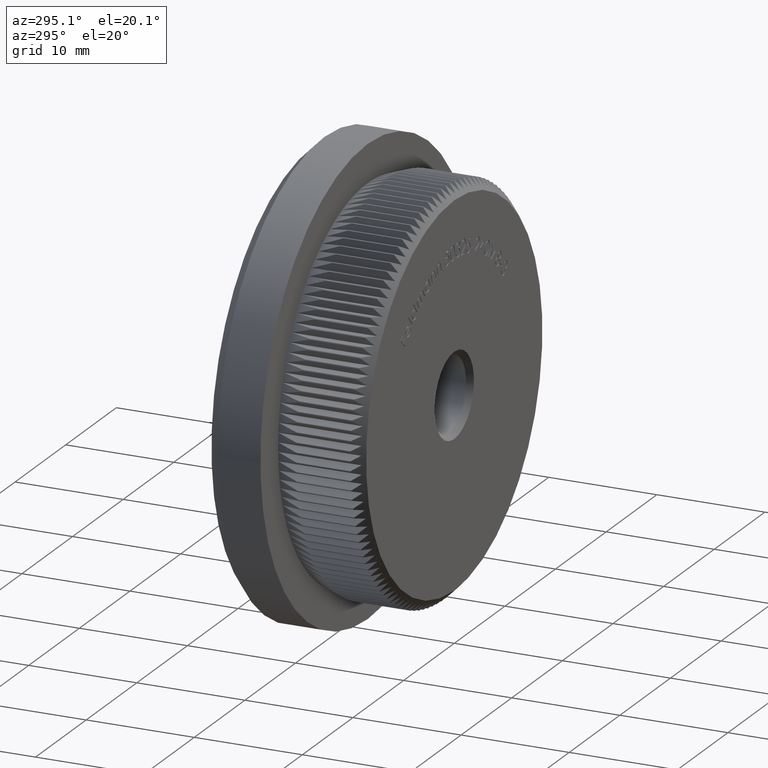
[diagram: clean part render]
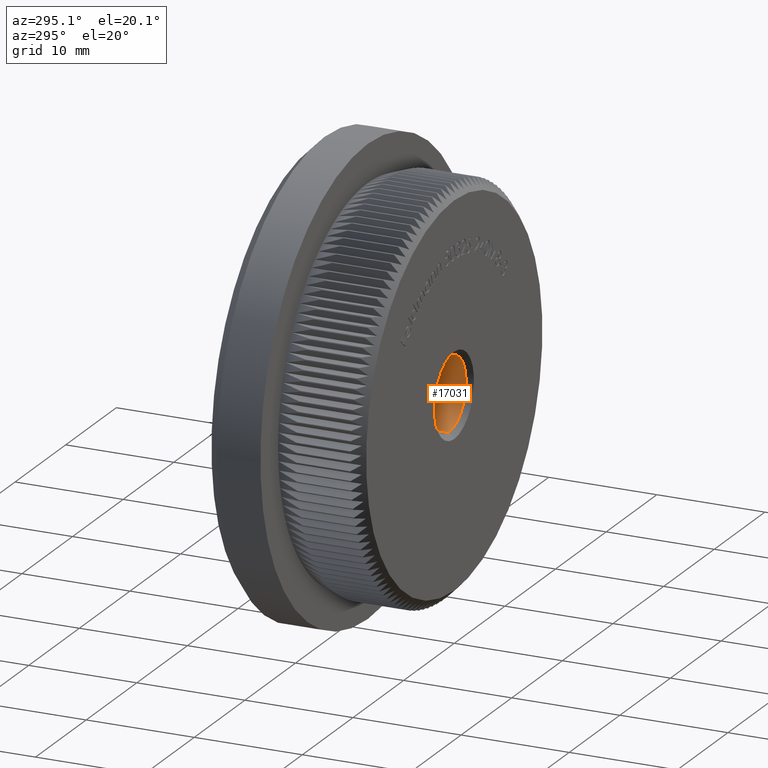
[diagram: same view with one face highlighted and labeled with its STEP entity id]
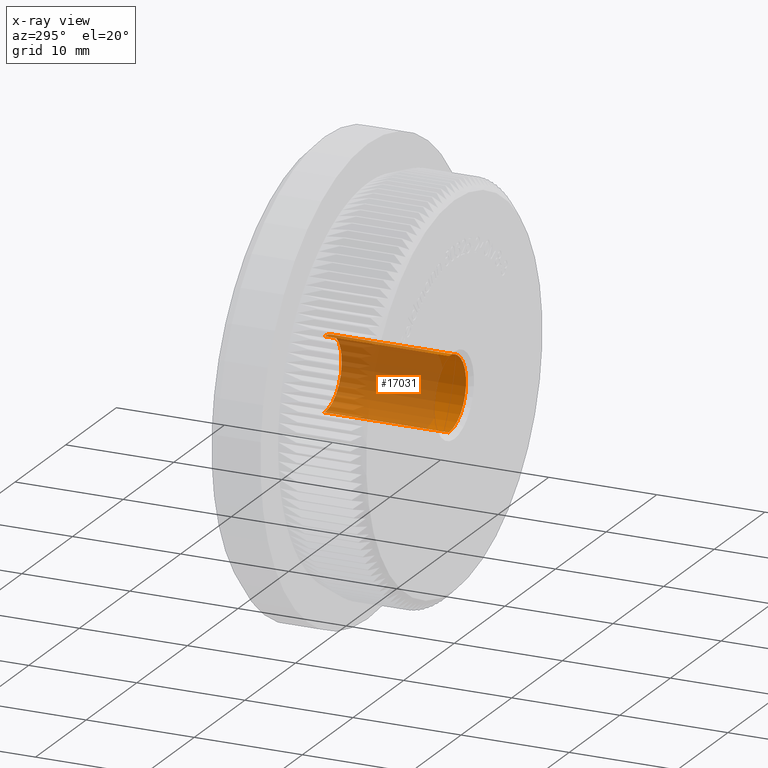
[diagram: x-ray of the same camera — body ghosted, the highlighted face saturated]
A machine part, auxiliary view. The second image highlights one B-rep face of the part: STEP entity #17031.
The next image is the same camera in x-ray: the body ghosted, the highlighted face saturated — about 79% of this face is hidden behind the body in this view.
In plain terms, the highlighted cylindrical surface (partial cylindrical patch) has radius 3.4 mm, axis along (-0, -1, -0).
Its self-contained STEP definition (entity closure, byte-faithful):
#2024 = LINE ( 'NONE', #16255, #18630 ) ;
#2228 = CARTESIAN_POINT ( 'NONE',  ( 4.163799117100997600E-016, 0.4999999999999945000, 3.399999999999997700 ) ) ;
#2805 = CARTESIAN_POINT ( 'NONE',  ( 0.0000000000000000000, 0.4999999999999945000, 0.0000000000000000000 ) ) ;
#2984 = ORIENTED_EDGE ( 'NONE', *, *, #11203, .T. ) ;
#3091 = AXIS2_PLACEMENT_3D ( 'NONE', #23356, #25852, #8395 ) ;
#4944 = AXIS2_PLACEMENT_3D ( 'NONE', #2805, #30887, #5477 ) ;
#5142 = EDGE_CURVE ( 'NONE', #17555, #8922, #2024, .T. ) ;
#5477 = DIRECTION ( 'NONE',  ( 0.0000000000000000000, 0.0000000000000000000, -1.000000000000000000 ) ) ;
#5551 = CIRCLE ( 'NONE', #4944, 3.399999999999997700 ) ;
#6518 = DIRECTION ( 'NONE',  ( -0.0000000000000000000, -1.000000000000000000, -0.0000000000000000000 ) ) ;
#7336 = CARTESIAN_POINT ( 'NONE',  ( 0.0000000000000000000, 11.99999999999998000, 0.0000000000000000000 ) ) ;
#7473 = CARTESIAN_POINT ( 'NONE',  ( 0.0000000000000000000, 11.99999999999998000, -3.399999999999997700 ) ) ;
#8395 = DIRECTION ( 'NONE',  ( 0.0000000000000000000, 0.0000000000000000000, -1.000000000000000000 ) ) ;
#8462 = VERTEX_POINT ( 'NONE', #7473 ) ;
#8922 = VERTEX_POINT ( 'NONE', #2228 ) ;
#9684 = LINE ( 'NONE', #21406, #11266 ) ;
#9796 = DIRECTION ( 'NONE',  ( 0.0000000000000000000, 0.0000000000000000000, 1.000000000000000000 ) ) ;
#11143 = CARTESIAN_POINT ( 'NONE',  ( 4.163799117100997600E-016, 11.99999999999998000, 3.399999999999997700 ) ) ;
#11203 = EDGE_CURVE ( 'NONE', #26259, #8922, #5551, .T. ) ;
#11266 = VECTOR ( 'NONE', #6518, 1000.000000000000000 ) ;
#11434 = DIRECTION ( 'NONE',  ( -0.0000000000000000000, -1.000000000000000000, -0.0000000000000000000 ) ) ;
#12141 = ORIENTED_EDGE ( 'NONE', *, *, #5142, .F. ) ;
#13992 = FACE_OUTER_BOUND ( 'NONE', #21422, .T. ) ;
#14474 = ORIENTED_EDGE ( 'NONE', *, *, #31731, .T. ) ;
#16255 = CARTESIAN_POINT ( 'NONE',  ( 4.163799117100997600E-016, 0.0000000000000000000, 3.399999999999997700 ) ) ;
#17031 = ADVANCED_FACE ( 'NONE', ( #13992 ), #27748, .F. ) ;
#17555 = VERTEX_POINT ( 'NONE', #11143 ) ;
#17655 = ORIENTED_EDGE ( 'NONE', *, *, #19958, .T. ) ;
#18630 = VECTOR ( 'NONE', #11434, 1000.000000000000000 ) ;
#19958 = EDGE_CURVE ( 'NONE', #8462, #26259, #9684, .T. ) ;
#21027 = CARTESIAN_POINT ( 'NONE',  ( 0.0000000000000000000, 0.4999999999999945000, -3.399999999999997700 ) ) ;
#21406 = CARTESIAN_POINT ( 'NONE',  ( 0.0000000000000000000, 0.0000000000000000000, -3.399999999999997700 ) ) ;
#21422 = EDGE_LOOP ( 'NONE', ( #12141, #14474, #17655, #2984 ) ) ;
#23356 = CARTESIAN_POINT ( 'NONE',  ( 0.0000000000000000000, 0.0000000000000000000, 0.0000000000000000000 ) ) ;
#23675 = AXIS2_PLACEMENT_3D ( 'NONE', #7336, #24795, #9796 ) ;
#24795 = DIRECTION ( 'NONE',  ( -0.0000000000000000000, 1.000000000000000000, -0.0000000000000000000 ) ) ;
#25852 = DIRECTION ( 'NONE',  ( -0.0000000000000000000, -1.000000000000000000, -0.0000000000000000000 ) ) ;
#26259 = VERTEX_POINT ( 'NONE', #21027 ) ;
#27748 = CYLINDRICAL_SURFACE ( 'NONE', #3091, 3.399999999999997700 ) ;
#29377 = CIRCLE ( 'NONE', #23675, 3.399999999999997700 ) ;
#30887 = DIRECTION ( 'NONE',  ( 0.0000000000000000000, -1.000000000000000000, 0.0000000000000000000 ) ) ;
#31731 = EDGE_CURVE ( 'NONE', #17555, #8462, #29377, .T. ) ;